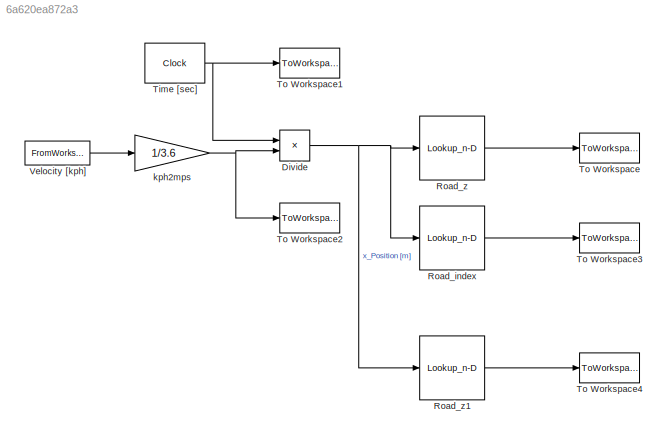
MODEL slx_6a620ea872a3
KIND model
CONFIG AbsTol = auto
CONFIG EnableMultiTasking = off
CONFIG FixedStep = auto
CONFIG MaxStep = auto
CONFIG MinStep = auto
CONFIG RelTol = 1e-3
CONFIG SampleTimeConstraint = Unconstrained
CONFIG Solver = VariableStepAuto
CONFIG SolverName = VariableStepAuto
CONFIG StartTime = 0.0
CONFIG StopTime = 19.99
BLOCK [Product] Divide
  InputSameDT = off
  Inputs = **
  OutDataTypeStr = Inherit: Inherit via internal rule
  Ports = [2, 1]
  RndMeth = Floor
  SaturateOnIntegerOverflow = off
BLOCK [Lookup_n-D] Road_index
  BreakpointsForDimension1 = ROAD_x
  InternalRulePriority = Speed
  NumberOfTableDimensions = 1
  Ports = [1, 1]
  RndMeth = Simplest
  Table = road_index
BLOCK [Lookup_n-D] Road_z
  BreakpointsForDimension1 = ROAD_x
  InternalRulePriority = Speed
  NumberOfTableDimensions = 1
  Ports = [1, 1]
  RndMeth = Simplest
  Table = ROAD_z_LH
BLOCK [Lookup_n-D] Road_z1
  BreakpointsForDimension1 = ROAD_x
  InternalRulePriority = Speed
  NumberOfTableDimensions = 1
  Ports = [1, 1]
  RndMeth = Simplest
  Table = ROAD_z_RH
BLOCK [Clock] Time [sec]
  Decimation = 20
  DisplayTime = on
BLOCK [ToWorkspace] To Workspace
  FixptAsFi = on
  MaxDataPoints = inf
  Ports = [1]
  SampleTime = 0.01
  VariableName = road_ZL
BLOCK [ToWorkspace] To Workspace1
  FixptAsFi = on
  MaxDataPoints = inf
  Ports = [1]
  SampleTime = 0.01
  VariableName = time
BLOCK [ToWorkspace] To Workspace2
  FixptAsFi = on
  MaxDataPoints = inf
  Ports = [1]
  SampleTime = 0.01
  VariableName = vel
BLOCK [ToWorkspace] To Workspace3
  FixptAsFi = on
  MaxDataPoints = inf
  Ports = [1]
  SampleTime = 0.01
  VariableName = Road_index
BLOCK [ToWorkspace] To Workspace4
  FixptAsFi = on
  MaxDataPoints = inf
  Ports = [1]
  SampleTime = 0.01
  VariableName = road_ZR
BLOCK [FromWorkspace] Velocity [kph]
  SampleTime = 0.001
  VariableName = [Time Velocity]
  ZeroCross = on
BLOCK [Gain] kph2mps
  Gain = 1/3.6
  OutDataTypeStr = Inherit: Inherit via internal rule
  ParamDataTypeStr = Inherit: Inherit via internal rule
  SaturateOnIntegerOverflow = off
NET Divide:1 -> Road_index:1, Road_z1:1, Road_z:1
LINE Road_index:1 -> To Workspace3:1
LINE Road_z1:1 -> To Workspace4:1
LINE Road_z:1 -> To Workspace:1
NET Time [sec]:1 -> Divide:1, To Workspace1:1
LINE Velocity [kph]:1 -> kph2mps:1
NET kph2mps:1 -> Divide:2, To Workspace2:1
note: NET lines group one-source signal fan-out (src -> all destinations, sorted); 1:1 wires keep LINE
